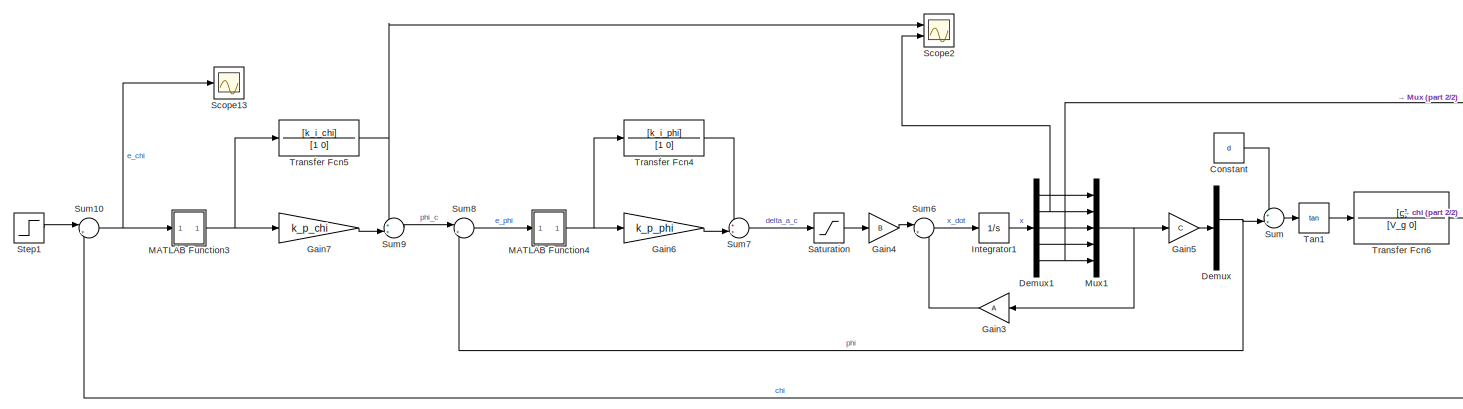
[diagram: root canvas - part 1/2, most of the canvas]
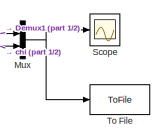
[diagram: root canvas - part 2/2, middle right region]
MODEL slx_581256442d88
KIND model
CONFIG AbsTol = auto
CONFIG EnableMultiTasking = off
CONFIG FixedStep = auto
CONFIG MaxStep = auto
CONFIG MinStep = auto
CONFIG RelTol = 1e-3
CONFIG SampleTimeConstraint = Unconstrained
CONFIG SolverName = VariableStepAuto
CONFIG StartTime = 0.0
CONFIG StopTime = 100.0
BLOCK [Constant] Constant
  Value = d
BLOCK [Demux] Demux
  Ports = [1, 4]
BLOCK [Demux] Demux1
  Outputs = 5
  Ports = [1, 5]
BLOCK [Gain] Gain3
  Gain = A
  Multiplication = Matrix(K*u)
BLOCK [Gain] Gain4
  Gain = B
  Multiplication = Matrix(K*u)
BLOCK [Gain] Gain5
  Gain = C
  Multiplication = Matrix(K*u)
BLOCK [Gain] Gain6
  Gain = k_p_phi
BLOCK [Gain] Gain7
  Gain = k_p_chi
BLOCK [Integrator] Integrator1
  Ports = [1, 1]
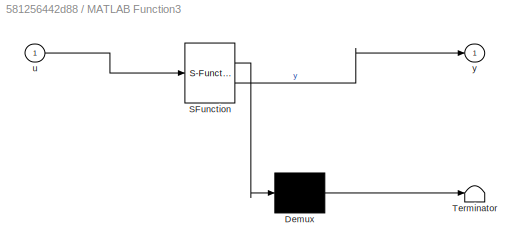
BLOCK [SubSystem] MATLAB Function3
  ErrorFcn = Stateflow.Translate.translate
  PermitHierarchicalResolution = ExplicitOnly
  Ports = [1, 1]
  RequestExecContextInheritance = off
  SFBlockType = MATLAB Function
  TreatAsAtomicUnit = on
BLOCK [Demux] MATLAB Function3/ Demux 
  Outputs = 1
  Ports = [1, 1]
BLOCK [S-Function] MATLAB Function3/ SFunction 
  EnableBusSupport = on
  FunctionName = sf_sfun
  PortCounts = [1 2]
  Ports = [1, 2]
  SFcnIsStateOwnerBlock = off
  SFunctionDeploymentMode = off
  Tag = Stateflow S-Function 3
BLOCK [Terminator] MATLAB Function3/ Terminator 
BLOCK [Inport] MATLAB Function3/u
BLOCK [Outport] MATLAB Function3/y
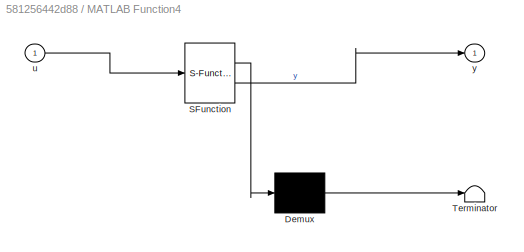
BLOCK [SubSystem] MATLAB Function4
  ErrorFcn = Stateflow.Translate.translate
  PermitHierarchicalResolution = ExplicitOnly
  Ports = [1, 1]
  RequestExecContextInheritance = off
  SFBlockType = MATLAB Function
  TreatAsAtomicUnit = on
BLOCK [Demux] MATLAB Function4/ Demux 
  Outputs = 1
  Ports = [1, 1]
BLOCK [S-Function] MATLAB Function4/ SFunction 
  EnableBusSupport = on
  FunctionName = sf_sfun
  PortCounts = [1 2]
  Ports = [1, 2]
  SFcnIsStateOwnerBlock = off
  SFunctionDeploymentMode = off
  Tag = Stateflow S-Function 4
BLOCK [Terminator] MATLAB Function4/ Terminator 
BLOCK [Inport] MATLAB Function4/u
BLOCK [Outport] MATLAB Function4/y
BLOCK [Mux] Mux
  DisplayOption = bar
  Inputs = 2
  Ports = [2, 1]
BLOCK [Mux] Mux1
  DisplayOption = bar
  Inputs = 5
  Ports = [5, 1]
BLOCK [Saturate] Saturation
  LowerLimit = -delta_a_max
  UpperLimit = delta_a_max
BLOCK [Scope] Scope
  Floating = off
  NumInputPorts = 1
  Ports = [1]
  ScopeSpecificationString = Simulink.scopes.TimeScopeBlockCfg('CurrentConfiguration', extmgr.ConfigurationSet(extmgr.Configuration('Core','General UI',true),extmgr.Configuration('Core','Source UI',true),extmgr.Configuration('Sources','WiredSimulink',true),extmgr.Configuration('Visuals','Time Domain',true,'SerializedDisplays',{struct('MinYLimReal','-0.63598','MaxYLimReal','0.48787','YLabelReal','','MinYLimMag','0.00000','MaxY...<+1362ch>
BLOCK [Scope] Scope13
  Floating = off
  NumInputPorts = 1
  Ports = [1]
  ScopeSpecificationString = Simulink.scopes.TimeScopeBlockCfg('CurrentConfiguration', extmgr.ConfigurationSet(extmgr.Configuration('Core','General UI',true),extmgr.Configuration('Core','Source UI',true),extmgr.Configuration('Sources','WiredSimulink',true,'DataLoggingVariableName','ScopeData4'),extmgr.Configuration('Visuals','Time Domain',true,'SerializedDisplays',{struct('MinYLimReal','-1.61957','MaxYLimReal','9.72354','YLab...<+1397ch>
BLOCK [Scope] Scope2
  Floating = off
  NumInputPorts = 2
  Ports = [2]
  ScopeSpecificationString = Simulink.scopes.TimeScopeBlockCfg('CurrentConfiguration', extmgr.ConfigurationSet(extmgr.Configuration('Core','General UI',true),extmgr.Configuration('Core','Source UI',true),extmgr.Configuration('Sources','WiredSimulink',true,'DataLoggingVariableName','ScopeData2'),extmgr.Configuration('Visuals','Time Domain',true,'SerializedDisplays',{struct('MinYLimReal','-0.25164','MaxYLimReal','0.70595','YLab...<+1411ch>
BLOCK [Step] Step1
  After = 15*pi/180
  SampleTime = 0
  Time = 5
BLOCK [Sum] Sum
  Inputs = ++|
  Ports = [2, 1]
BLOCK [Sum] Sum10
  Inputs = |+-
  Ports = [2, 1]
BLOCK [Sum] Sum6
  Inputs = |++
  Ports = [2, 1]
BLOCK [Sum] Sum7
  Inputs = ++|
  Ports = [2, 1]
BLOCK [Sum] Sum8
  Inputs = |+-
  Ports = [2, 1]
BLOCK [Sum] Sum9
  Inputs = ++|
  Ports = [2, 1]
BLOCK [Trigonometry] Tan1
  Operator = tan
  Ports = [1, 1]
BLOCK [ToFile] To File
  Filename = step_15_degrees.mat
  Ports = [1]
BLOCK [TransferFcn] Transfer Fcn4
  Denominator = [1 0]
  Numerator = [k_i_phi]
BLOCK [TransferFcn] Transfer Fcn5
  Denominator = [1 0]
  Numerator = [k_i_chi]
BLOCK [TransferFcn] Transfer Fcn6
  Denominator = [V_g 0]
  Numerator = [g]
LINE Constant:1 -> Sum:1
LINE Demux1:1 -> Mux1:1
NET Demux1:2 -> Mux1:2, Scope2:2
LINE Demux1:3 -> Mux1:3
LINE Demux1:4 -> Mux1:4
NET Demux1:5 -> Mux1:5, Mux:1
NET Demux:2 -> Sum8:2, Sum:2
LINE Gain3:1 -> Sum6:2
LINE Gain4:1 -> Sum6:1
LINE Gain5:1 -> Demux:1
LINE Gain6:1 -> Sum7:2
LINE Gain7:1 -> Sum9:2
LINE Integrator1:1 -> Demux1:1
NET MATLAB Function3:1 -> Gain7:1, Transfer Fcn5:1
NET MATLAB Function4:1 -> Gain6:1, Transfer Fcn4:1
NET Mux1:1 -> Gain3:1, Gain5:1
NET Mux:1 -> Scope:1, To File:1
LINE Saturation:1 -> Gain4:1
LINE Step1:1 -> Sum10:1
NET Sum10:1 -> MATLAB Function3:1, Scope13:1
LINE Sum6:1 -> Integrator1:1
LINE Sum7:1 -> Saturation:1
LINE Sum8:1 -> MATLAB Function4:1
LINE Sum9:1 -> Sum8:1
LINE Sum:1 -> Tan1:1
LINE Tan1:1 -> Transfer Fcn6:1
LINE Transfer Fcn4:1 -> Sum7:1
NET Transfer Fcn5:1 -> Scope2:1, Sum9:1
NET Transfer Fcn6:1 -> Mux:2, Sum10:2
note: NET lines group one-source signal fan-out (src -> all destinations, sorted); 1:1 wires keep LINE
CHART MATLAB Function4 states=1 transitions=1
  STATE_LABEL 'eML_blk_kernel()'
  STATE_LABEL 'SCRIPT:\nfunction y = fcn(u)\n\ny = angdiff(0,u);\n'
CHART MATLAB Function3 states=1 transitions=1
  STATE_LABEL 'eML_blk_kernel()'
  STATE_LABEL 'SCRIPT:\nfunction y = fcn(u)\n\ny = angdiff(0,u);\n'
CHART  states=0 transitions=0
CHART  states=0 transitions=0
